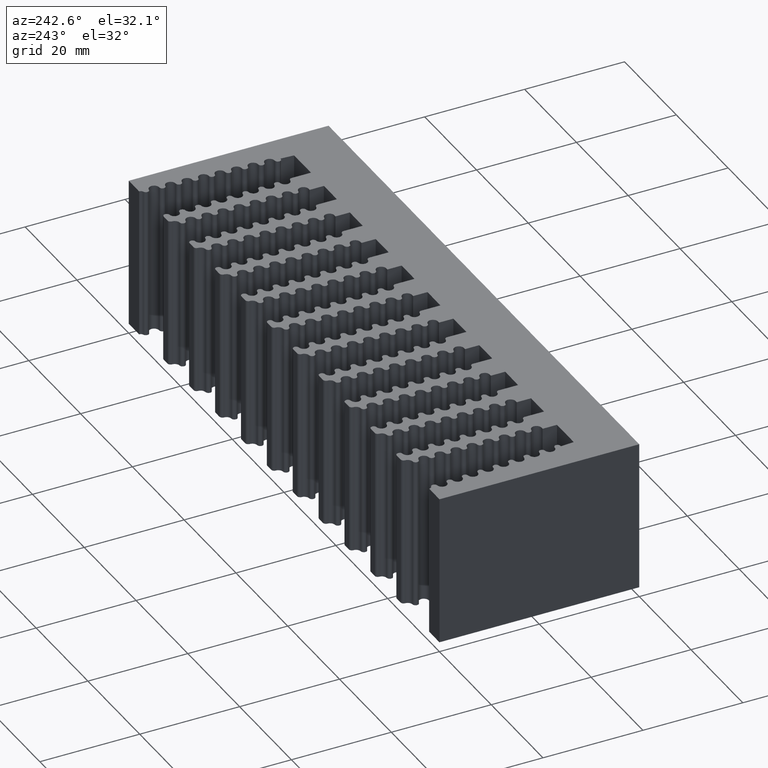
[diagram: clean part render]
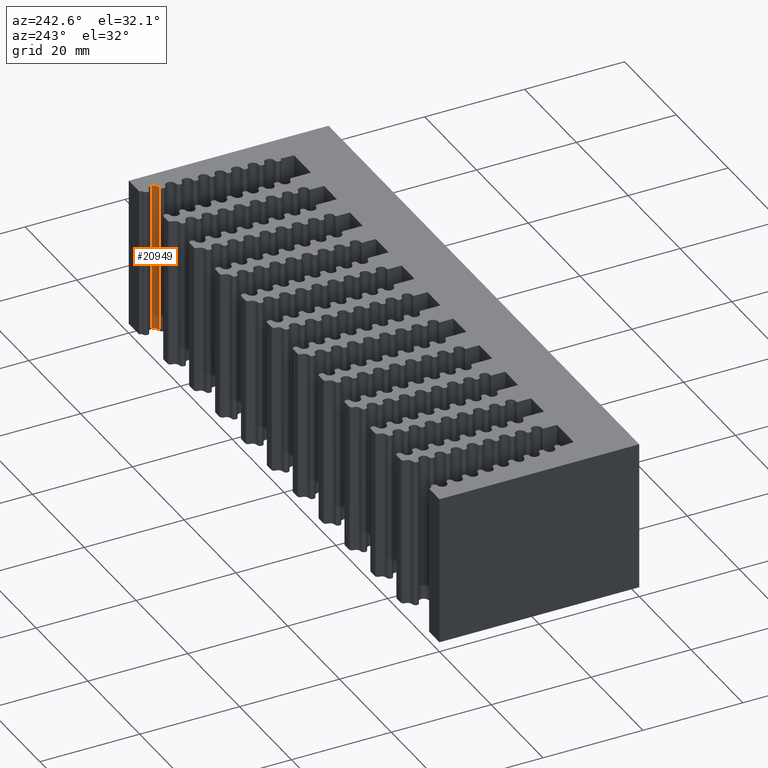
[diagram: same view with one face highlighted and labeled with its STEP entity id]
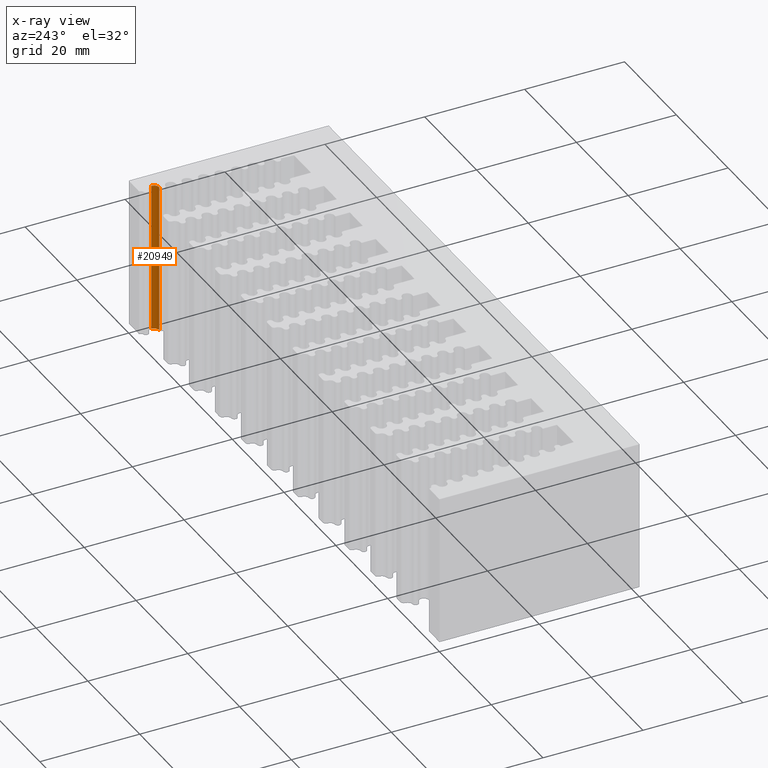
[diagram: x-ray of the same camera — body ghosted, the highlighted face saturated]
A machine part, auxiliary view. The second image highlights one B-rep face of the part: STEP entity #20949.
The next image is the same camera in x-ray: the body ghosted, the highlighted face saturated — about 0% of this face is hidden behind the body in this view.
In plain terms, the highlighted cylindrical surface (edge-blend (fillet) strip) has radius 1 mm, axis along (0, 0, 1).
Its self-contained STEP definition (entity closure, byte-faithful):
#592 = CARTESIAN_POINT ( 'NONE',  ( 116.5932918862106362, 37.20670349646934483, 0.0000000000000000000 ) ) ;
#1672 = CARTESIAN_POINT ( 'NONE',  ( 116.5932918862106362, 37.20670349646934483, -30.00000000000000000 ) ) ;
#2415 = CYLINDRICAL_SURFACE ( 'NONE', #19567, 1.000000000000000888 ) ;
#3146 = EDGE_CURVE ( 'NONE', #9100, #17342, #8896, .T. ) ;
#3193 = LINE ( 'NONE', #18123, #19541 ) ;
#3687 = VERTEX_POINT ( 'NONE', #592 ) ;
#4356 = ORIENTED_EDGE ( 'NONE', *, *, #10559, .F. ) ;
#4418 = VECTOR ( 'NONE', #19777, 1000.000000000000000 ) ;
#5856 = DIRECTION ( 'NONE',  ( -0.0000000000000000000, -0.0000000000000000000, -1.000000000000000000 ) ) ;
#6398 = LINE ( 'NONE', #19445, #4418 ) ;
#7115 = VERTEX_POINT ( 'NONE', #10639 ) ;
#7122 = AXIS2_PLACEMENT_3D ( 'NONE', #8688, #12103, #15316 ) ;
#7505 = DIRECTION ( 'NONE',  ( 1.000000000000000000, 0.0000000000000000000, 0.0000000000000000000 ) ) ;
#8688 = CARTESIAN_POINT ( 'NONE',  ( 115.5932918862106362, 37.20670349646934483, -30.00000000000000000 ) ) ;
#8896 = CIRCLE ( 'NONE', #7122, 1.000000000000000888 ) ;
#9100 = VERTEX_POINT ( 'NONE', #1672 ) ;
#9894 = DIRECTION ( 'NONE',  ( 0.0000000000000000000, 0.0000000000000000000, 1.000000000000000000 ) ) ;
#10559 = EDGE_CURVE ( 'NONE', #3687, #7115, #17266, .T. ) ;
#10639 = CARTESIAN_POINT ( 'NONE',  ( 115.5517382950730507, 36.20756721994668226, 0.0000000000000000000 ) ) ;
#10930 = AXIS2_PLACEMENT_3D ( 'NONE', #20865, #5856, #7505 ) ;
#11044 = ORIENTED_EDGE ( 'NONE', *, *, #21805, .F. ) ;
#11390 = DIRECTION ( 'NONE',  ( 0.0000000000000000000, 0.0000000000000000000, 1.000000000000000000 ) ) ;
#11968 = EDGE_LOOP ( 'NONE', ( #11044, #20356, #20300, #4356 ) ) ;
#12103 = DIRECTION ( 'NONE',  ( -0.0000000000000000000, -0.0000000000000000000, -1.000000000000000000 ) ) ;
#15316 = DIRECTION ( 'NONE',  ( 1.000000000000000000, 0.0000000000000000000, 0.0000000000000000000 ) ) ;
#15736 = EDGE_CURVE ( 'NONE', #17342, #7115, #3193, .T. ) ;
#17266 = CIRCLE ( 'NONE', #10930, 1.000000000000000888 ) ;
#17342 = VERTEX_POINT ( 'NONE', #21279 ) ;
#18123 = CARTESIAN_POINT ( 'NONE',  ( 115.5517382950730507, 36.20756721994668226, -30.00000000000000000 ) ) ;
#18178 = DIRECTION ( 'NONE',  ( 1.000000000000000000, 0.0000000000000000000, 0.0000000000000000000 ) ) ;
#19445 = CARTESIAN_POINT ( 'NONE',  ( 116.5932918862106362, 37.20670349646934483, -30.00000000000000000 ) ) ;
#19541 = VECTOR ( 'NONE', #11390, 1000.000000000000000 ) ;
#19567 = AXIS2_PLACEMENT_3D ( 'NONE', #21598, #9894, #18178 ) ;
#19777 = DIRECTION ( 'NONE',  ( 0.0000000000000000000, 0.0000000000000000000, 1.000000000000000000 ) ) ;
#20300 = ORIENTED_EDGE ( 'NONE', *, *, #15736, .T. ) ;
#20356 = ORIENTED_EDGE ( 'NONE', *, *, #3146, .T. ) ;
#20865 = CARTESIAN_POINT ( 'NONE',  ( 115.5932918862106362, 37.20670349646934483, 0.0000000000000000000 ) ) ;
#20949 = ADVANCED_FACE ( 'NONE', ( #21488 ), #2415, .F. ) ;
#21279 = CARTESIAN_POINT ( 'NONE',  ( 115.5517382950730507, 36.20756721994668226, -30.00000000000000000 ) ) ;
#21488 = FACE_OUTER_BOUND ( 'NONE', #11968, .T. ) ;
#21598 = CARTESIAN_POINT ( 'NONE',  ( 115.5932918862106362, 37.20670349646934483, -30.00000000000000000 ) ) ;
#21805 = EDGE_CURVE ( 'NONE', #9100, #3687, #6398, .T. ) ;